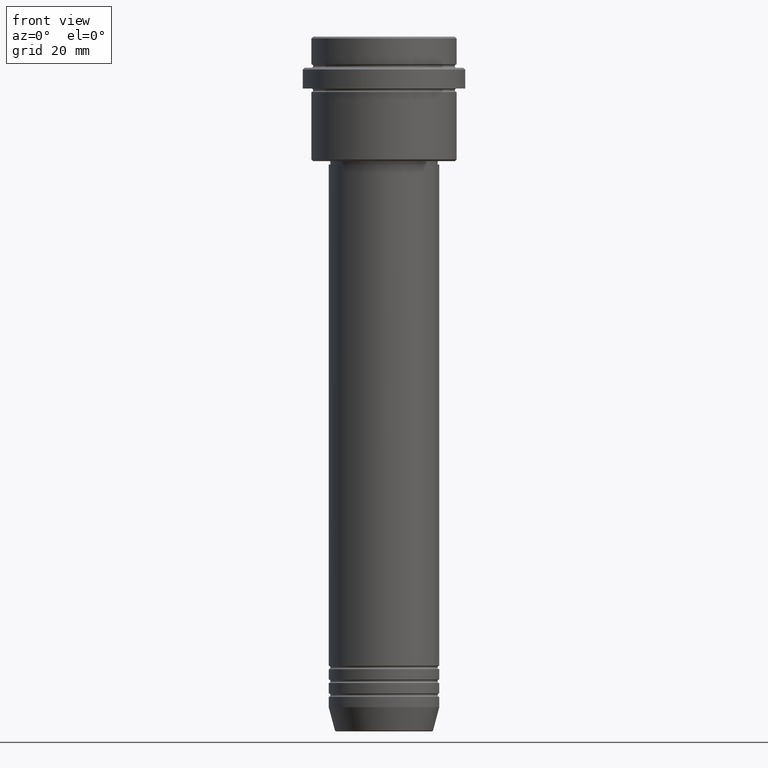
[diagram: clean part render]
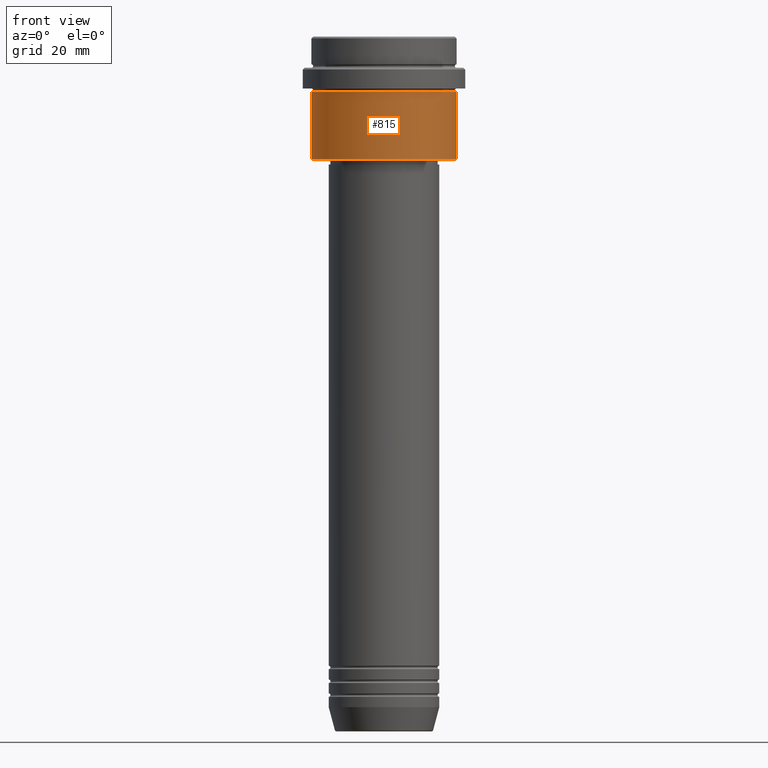
[diagram: same view with one face highlighted and labeled with its STEP entity id]
A machine part, front view. The second image highlights one B-rep face of the part: STEP entity #815.
In plain terms, the highlighted cylindrical surface (partial cylindrical patch) has radius 21 mm, axis along (-0, -0, 1).
Its self-contained STEP definition (entity closure, byte-faithful):
#9 = EDGE_CURVE ( 'NONE', #235, #1157, #795, .T. ) ;
#18 = LINE ( 'NONE', #1086, #1073 ) ;
#82 = DIRECTION ( 'NONE',  ( -0.000000000000000000, -0.000000000000000000, 1.000000000000000000 ) ) ;
#117 = ORIENTED_EDGE ( 'NONE', *, *, #9, .T. ) ;
#120 = CARTESIAN_POINT ( 'NONE',  ( -21.00000000000000000, 2.571758278209441661E-15, -35.49999999999997868 ) ) ;
#167 = CARTESIAN_POINT ( 'NONE',  ( 0.000000000000000000, 0.000000000000000000, 0.000000000000000000 ) ) ;
#172 = CARTESIAN_POINT ( 'NONE',  ( -21.00000000000000000, 2.571758278209441661E-15, -16.00000000000000355 ) ) ;
#182 = AXIS2_PLACEMENT_3D ( 'NONE', #718, #82, #939 ) ;
#186 = CARTESIAN_POINT ( 'NONE',  ( 21.00000000000000000, 0.000000000000000000, -16.00000000000000355 ) ) ;
#235 = VERTEX_POINT ( 'NONE', #120 ) ;
#246 = VECTOR ( 'NONE', #715, 1000.000000000000000 ) ;
#283 = CARTESIAN_POINT ( 'NONE',  ( -21.00000000000000000, 2.571758278209441661E-15, 0.000000000000000000 ) ) ;
#380 = CARTESIAN_POINT ( 'NONE',  ( 0.000000000000000000, 0.000000000000000000, -35.49999999999997868 ) ) ;
#466 = EDGE_CURVE ( 'NONE', #1317, #890, #477, .T. ) ;
#477 = CIRCLE ( 'NONE', #182, 21.00000000000000000 ) ;
#544 = EDGE_LOOP ( 'NONE', ( #648, #117, #923, #1164 ) ) ;
#565 = DIRECTION ( 'NONE',  ( -0.000000000000000000, -0.000000000000000000, 1.000000000000000000 ) ) ;
#611 = AXIS2_PLACEMENT_3D ( 'NONE', #380, #1162, #822 ) ;
#648 = ORIENTED_EDGE ( 'NONE', *, *, #1316, .F. ) ;
#689 = DIRECTION ( 'NONE',  ( 1.000000000000000000, 0.000000000000000000, 0.000000000000000000 ) ) ;
#700 = FACE_OUTER_BOUND ( 'NONE', #544, .T. ) ;
#715 = DIRECTION ( 'NONE',  ( -0.000000000000000000, -0.000000000000000000, 1.000000000000000000 ) ) ;
#718 = CARTESIAN_POINT ( 'NONE',  ( 0.000000000000000000, 0.000000000000000000, -16.00000000000000355 ) ) ;
#795 = CIRCLE ( 'NONE', #611, 21.00000000000000000 ) ;
#815 = ADVANCED_FACE ( 'NONE', ( #700 ), #1141, .T. ) ;
#822 = DIRECTION ( 'NONE',  ( -1.000000000000000000, 0.000000000000000000, 0.000000000000000000 ) ) ;
#890 = VERTEX_POINT ( 'NONE', #186 ) ;
#898 = AXIS2_PLACEMENT_3D ( 'NONE', #167, #1136, #689 ) ;
#923 = ORIENTED_EDGE ( 'NONE', *, *, #1106, .T. ) ;
#939 = DIRECTION ( 'NONE',  ( 1.000000000000000000, 0.000000000000000000, 0.000000000000000000 ) ) ;
#994 = CARTESIAN_POINT ( 'NONE',  ( 21.00000000000000000, 0.000000000000000000, -35.49999999999997868 ) ) ;
#1073 = VECTOR ( 'NONE', #565, 1000.000000000000000 ) ;
#1086 = CARTESIAN_POINT ( 'NONE',  ( 21.00000000000000000, 0.000000000000000000, 0.000000000000000000 ) ) ;
#1106 = EDGE_CURVE ( 'NONE', #1157, #890, #18, .T. ) ;
#1136 = DIRECTION ( 'NONE',  ( -0.000000000000000000, -0.000000000000000000, 1.000000000000000000 ) ) ;
#1141 = CYLINDRICAL_SURFACE ( 'NONE', #898, 21.00000000000000000 ) ;
#1157 = VERTEX_POINT ( 'NONE', #994 ) ;
#1162 = DIRECTION ( 'NONE',  ( -0.000000000000000000, -0.000000000000000000, 1.000000000000000000 ) ) ;
#1164 = ORIENTED_EDGE ( 'NONE', *, *, #466, .F. ) ;
#1274 = LINE ( 'NONE', #283, #246 ) ;
#1316 = EDGE_CURVE ( 'NONE', #235, #1317, #1274, .T. ) ;
#1317 = VERTEX_POINT ( 'NONE', #172 ) ;